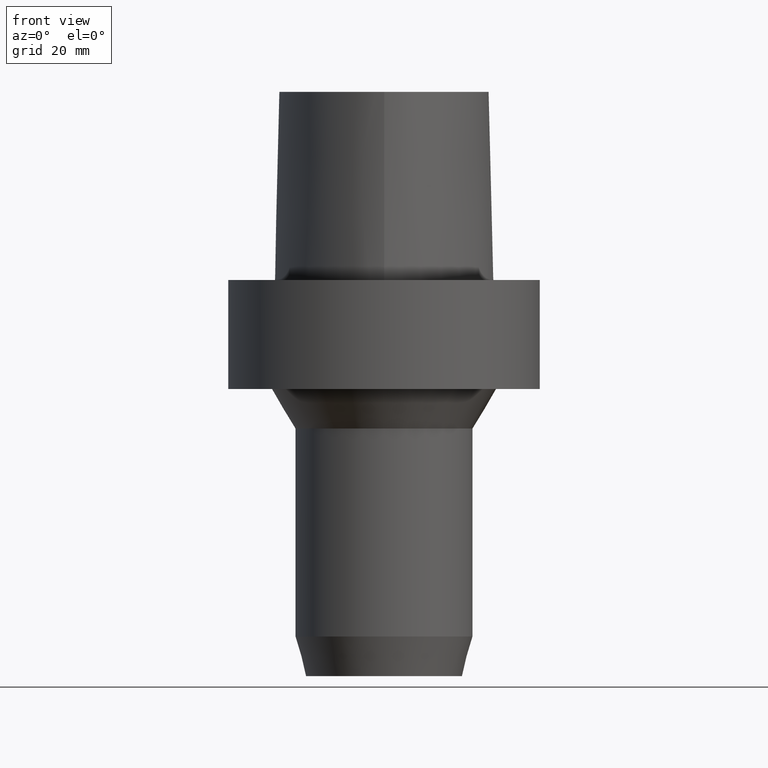
[diagram: clean part render]
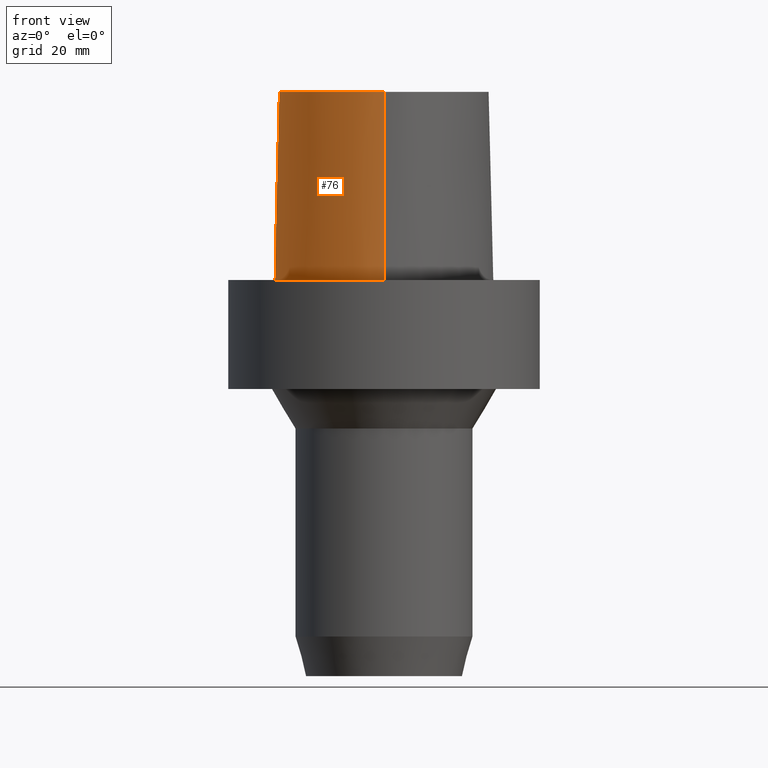
[diagram: same view with one face highlighted and labeled with its STEP entity id]
A machine part, front view. The second image highlights one B-rep face of the part: STEP entity #76.
In plain terms, the highlighted face is a freeform B-spline surface patch.
Its self-contained STEP definition (entity closure, byte-faithful):
#76=ADVANCED_FACE('',(#89),#90,.T.);
#89=FACE_OUTER_BOUND('',#184,.T.);
#90=B_SPLINE_SURFACE_WITH_KNOTS('',3,3,((#185,#186,#187,#188),(#189,#190,#191,#192),(#193,#194,#195,#196),(#197,#198,#199,#200),(#201,#202,#203,#204),(#205,#206,#207,#208),(#209,#210,#211,#212),(#213,#214,#215,#216),(#217,#218,#219,#220),(#221,#222,#223,#224),(#225,#226,#227,#228),(#229,#230,#231,#232),(#233,#234,#235,#236),(#237,#238,#239,#240),(#241,#242,#243,#244),(#245,#246,#247,#248),(#249,#250,#251,#252),(#253,#254,#255,#256)),.UNSPECIFIED.,.F.,.F.,.F.,(4,1,1,1,1,1,1,1,1,2,1,1,1,1,4),(4,4),(-6.6151339308743,-6.20168806019465,-5.78824218951501,-5.37479631883537,-4.96135044815572,-4.13445870679644,-3.30756696543715,-2.89412109475751,-2.48067522407786,-2.06722935339822,-1.65378348271857,-1.24033761203893,-0.826891741359287,-0.413445870679644,0.0),(-3.8,0.0),.UNSPECIFIED.);
#184=EDGE_LOOP('',(#285,#286,#287,#288));
#185=CARTESIAN_POINT('',(0.038736923393866,-22.5191997536361,38.0));
#186=CARTESIAN_POINT('',(0.04035580478973,-22.8358410047159,25.3333333333066));
#187=CARTESIAN_POINT('',(0.041974686185626,-23.1524822558133,12.6666666666934));
#188=CARTESIAN_POINT('',(0.04359356758149,-23.4691235068931,7.78075697532443E-032));
#189=CARTESIAN_POINT('',(-1.33786123484754,-22.5261650259856,38.0));
#190=CARTESIAN_POINT('',(-1.38240731367927,-22.8430399310626,25.3333333333066));
#191=CARTESIAN_POINT('',(-1.42695339249092,-23.1599147815484,12.6666666666934));
#192=CARTESIAN_POINT('',(-1.4714994713963,-23.4767895315797,2.46519032881566E-032));
#193=CARTESIAN_POINT('',(-4.08909358431842,-21.9268839879558,38.0));
#194=CARTESIAN_POINT('',(-4.20580731135515,-22.2249725500078,25.3333333333066));
#195=CARTESIAN_POINT('',(-4.32252104640446,-22.5230611651922,12.6666666666934));
#196=CARTESIAN_POINT('',(-4.43923476371401,-22.821149804767,-4.93038065763132E-032));
#197=CARTESIAN_POINT('',(-7.8333083619947,-19.9973514861616,38.0));
#198=CARTESIAN_POINT('',(-8.00568301809614,-20.2649260859405,25.3333333333066));
#199=CARTESIAN_POINT('',(-8.1780576640789,-20.532500564315,12.6666666666934));
#200=CARTESIAN_POINT('',(-8.35043230079961,-20.8000751253325,-9.86076131526265E-032));
#201=CARTESIAN_POINT('',(-11.1035071147626,-17.450554957873,38.0));
#202=CARTESIAN_POINT('',(-11.3173048160562,-17.6855739222454,25.3333333333066));
#203=CARTESIAN_POINT('',(-11.5311025116181,-17.9205928617968,12.6666666666934));
#204=CARTESIAN_POINT('',(-11.744900222602,-18.1556117874078,-1.97215226305253E-031));
#205=CARTESIAN_POINT('',(-14.9379535189057,-13.461132049697,38.0));
#206=CARTESIAN_POINT('',(-15.191622410671,-13.6542981711372,25.3333333333066));
#207=CARTESIAN_POINT('',(-15.4452913389853,-13.8474645327131,12.6666666666934));
#208=CARTESIAN_POINT('',(-15.6989602501314,-14.0406306929147,-1.97215226305253E-031));
#209=CARTESIAN_POINT('',(-18.6681263017223,-7.59391757463204,38.0));
#210=CARTESIAN_POINT('',(-18.9571800800711,-7.73136168081928,25.3333333333066));
#211=CARTESIAN_POINT('',(-19.2462337287194,-7.86880572399774,12.6666666666934));
#212=CARTESIAN_POINT('',(-19.5352875070682,-8.00624990770787,1.97215226305253E-031));
#213=CARTESIAN_POINT('',(-20.7857899858339,-0.952862819790525,38.0));
#214=CARTESIAN_POINT('',(-21.0973808305434,-1.02218087467418,25.3333333333066));
#215=CARTESIAN_POINT('',(-21.408971677436,-1.09149899580772,12.6666666666934));
#216=CARTESIAN_POINT('',(-21.7205626190491,-1.16081708945282,0.0));
#217=CARTESIAN_POINT('',(-21.2911760556836,4.5469215763113,38.0));
#218=CARTESIAN_POINT('',(-21.610337904926,4.54783292082248,25.3333333333066));
#219=CARTESIAN_POINT('',(-21.9294998290918,4.54874426225691,12.6666666666934));
#220=CARTESIAN_POINT('',(-22.2486616783342,4.54965558738736,0.0));
#221=CARTESIAN_POINT('',(-20.7345309521958,8.74909381391006,38.0));
#222=CARTESIAN_POINT('',(-21.0445680426217,8.83349432450556,25.3333333333066));
#223=CARTESIAN_POINT('',(-21.3546050933631,8.91789488065068,12.6666666666934));
#224=CARTESIAN_POINT('',(-21.6646421256468,9.00229539124618,0.0));
#225=CARTESIAN_POINT('',(-19.5531512296439,11.3174844040833,38.0));
#226=CARTESIAN_POINT('',(-19.8336219699984,11.4710077674213,25.3333333333066));
#227=CARTESIAN_POINT('',(-20.1140927680763,11.6245311337623,12.6666666666934));
#228=CARTESIAN_POINT('',(-20.3945635471922,11.7780544971003,0.0));
#229=CARTESIAN_POINT('',(-17.9100913688793,13.524027510437,38.0));
#230=CARTESIAN_POINT('',(-18.1375785458768,13.7487051053655,25.3333333333066));
#231=CARTESIAN_POINT('',(-18.365065665211,13.9733826973296,12.6666666666934));
#232=CARTESIAN_POINT('',(-18.5925528034471,14.1980602922581,0.0));
#233=CARTESIAN_POINT('',(-15.7996349656398,15.3762170634413,38.0));
#234=CARTESIAN_POINT('',(-15.9739761051783,15.6434029846179,25.3333333333066));
#235=CARTESIAN_POINT('',(-16.1483172726872,15.9105889315134,12.6666666666934));
#236=CARTESIAN_POINT('',(-16.3226584122258,16.1777748720707,0.0));
#237=CARTESIAN_POINT('',(-12.1175640002064,17.3825162484012,38.0));
#238=CARTESIAN_POINT('',(-12.2475895903055,17.6724842099619,25.3333333333066));
#239=CARTESIAN_POINT('',(-12.3776152070492,17.9624521925696,12.6666666666934));
#240=CARTESIAN_POINT('',(-12.5076407874579,18.2524201541303,9.86076131526265E-032));
#241=CARTESIAN_POINT('',(-8.21761151654222,18.7588585989994,38.0));
#242=CARTESIAN_POINT('',(-8.30099497910627,19.0656105427881,25.3333333333066));
#243=CARTESIAN_POINT('',(-8.38437843913309,19.3723624535439,12.6666666666934));
#244=CARTESIAN_POINT('',(-8.46776192107786,19.679114377952,9.86076131526265E-032));
#245=CARTESIAN_POINT('',(-4.13466093881225,19.5396850837055,38.0));
#246=CARTESIAN_POINT('',(-4.16658562115465,19.8557172636973,25.3333333333066));
#247=CARTESIAN_POINT('',(-4.19851029939059,20.1717494367229,12.6666666666934));
#248=CARTESIAN_POINT('',(-4.23043497193604,20.487781597334,1.97215226305253E-031));
#249=CARTESIAN_POINT('',(-1.37917220403684,19.6638560588908,38.0));
#250=CARTESIAN_POINT('',(-1.39382511685176,19.98016223565,25.3333333333066));
#251=CARTESIAN_POINT('',(-1.40847802945569,20.296468399885,12.6666666666934));
#252=CARTESIAN_POINT('',(-1.42313094248379,20.6127745766442,1.10933564796705E-031));
#253=CARTESIAN_POINT('',(-0.001218547003662,19.7276821925089,38.0));
#254=CARTESIAN_POINT('',(-0.015869696232855,20.043988446791,25.3333333333066));
#255=CARTESIAN_POINT('',(-0.030520845462092,20.3602947010464,12.6666666666934));
#256=CARTESIAN_POINT('',(-0.045171994691285,20.6766009553285,1.6755590516169E-031));
#285=ORIENTED_EDGE('',*,*,#340,.F.);
#286=ORIENTED_EDGE('',*,*,#339,.F.);
#287=ORIENTED_EDGE('',*,*,#341,.F.);
#288=ORIENTED_EDGE('',*,*,#342,.T.);
#339=EDGE_CURVE('',#355,#351,#357,.T.);
#340=EDGE_CURVE('',#351,#358,#359,.T.);
#341=EDGE_CURVE('',#353,#355,#360,.T.);
#342=EDGE_CURVE('',#353,#358,#361,.T.);
#351=VERTEX_POINT('',#376);
#353=VERTEX_POINT('',#394);
#355=VERTEX_POINT('',#397);
#357=LINE('',#414,#415);
#358=VERTEX_POINT('',#416);
#359=B_SPLINE_CURVE_WITH_KNOTS('',3,(#417,#418,#419,#420,#421,#422,#423,#424,#425,#426,#427,#428,#429,#430,#431,#432,#433,#434),.UNSPECIFIED.,.F.,.F.,(4,1,1,1,1,1,1,1,1,2,1,1,1,1,4),(-6.6151339308743,-6.20168806019465,-5.78824218951501,-5.37479631883537,-4.96135044815572,-4.13445870679644,-3.30756696543715,-2.89412109475751,-2.48067522407786,-2.06722935339822,-1.65378348271857,-1.24033761203893,-0.826891741359287,-0.413445870679644,0.0),.UNSPECIFIED.);
#360=B_SPLINE_CURVE_WITH_KNOTS('',3,(#435,#436,#437,#438,#439,#440,#441,#442,#443,#444,#445,#446,#447,#448,#449,#450),.UNSPECIFIED.,.F.,.F.,(4,1,1,1,1,1,1,1,1,1,1,1,1,4),(0.0,0.447924670568964,0.9388024242536,1.50591409090711,2.07314340012323,2.72424957442464,3.2253501842849,3.80982102049476,4.34867996267067,4.85900173381144,5.37972031856977,6.03459825488646,6.61113557741484,6.61513393087395),.UNSPECIFIED.);
#361=LINE('',#451,#452);
#376=CARTESIAN_POINT('',(0.04359356758149,-23.4691235068931,7.78075697532443E-032));
#394=CARTESIAN_POINT('',(-0.001218547003662,19.7276821925089,38.0));
#397=CARTESIAN_POINT('',(0.038736923393866,-22.5191997536361,38.0));
#414=CARTESIAN_POINT('',(0.038736923393866,-22.5191997536361,38.0));
#415=VECTOR('',#467,38.0118715498723);
#416=CARTESIAN_POINT('',(-0.045171994691285,20.6766009553285,1.6755590516169E-031));
#417=CARTESIAN_POINT('',(0.04359356758149,-23.4691235068931,7.78075697532443E-032));
#418=CARTESIAN_POINT('',(-1.4714994713963,-23.4767895315797,2.46519032881566E-032));
#419=CARTESIAN_POINT('',(-4.43923476371401,-22.821149804767,-4.93038065763132E-032));
#420=CARTESIAN_POINT('',(-8.35043230079961,-20.8000751253325,-9.86076131526265E-032));
#421=CARTESIAN_POINT('',(-11.744900222602,-18.1556117874078,-1.97215226305253E-031));
#422=CARTESIAN_POINT('',(-15.6989602501314,-14.0406306929147,-1.97215226305253E-031));
#423=CARTESIAN_POINT('',(-19.5352875070682,-8.00624990770787,1.97215226305253E-031));
#424=CARTESIAN_POINT('',(-21.7205626190491,-1.16081708945282,0.0));
#425=CARTESIAN_POINT('',(-22.2486616783342,4.54965558738736,0.0));
#426=CARTESIAN_POINT('',(-21.6646421256468,9.00229539124618,0.0));
#427=CARTESIAN_POINT('',(-20.3945635471922,11.7780544971003,0.0));
#428=CARTESIAN_POINT('',(-18.5925528034471,14.1980602922581,0.0));
#429=CARTESIAN_POINT('',(-16.3226584122258,16.1777748720707,0.0));
#430=CARTESIAN_POINT('',(-12.5076407874579,18.2524201541303,9.86076131526265E-032));
#431=CARTESIAN_POINT('',(-8.46776192107786,19.679114377952,9.86076131526265E-032));
#432=CARTESIAN_POINT('',(-4.23043497193604,20.487781597334,1.97215226305253E-031));
#433=CARTESIAN_POINT('',(-1.42313094248379,20.6127745766442,1.10933564796705E-031));
#434=CARTESIAN_POINT('',(-0.045171994691285,20.6766009553285,1.6755590516169E-031));
#435=CARTESIAN_POINT('',(-0.001218547003662,19.7276821925089,38.0));
#436=CARTESIAN_POINT('',(-1.49408492138443,19.6585333605309,38.0));
#437=CARTESIAN_POINT('',(-4.62297391420352,19.513604770166,38.0));
#438=CARTESIAN_POINT('',(-9.56160616752212,18.4291575730197,38.0));
#439=CARTESIAN_POINT('',(-14.5427684976927,16.2697452580488,38.0));
#440=CARTESIAN_POINT('',(-19.4315563551602,12.5302108980807,38.0));
#441=CARTESIAN_POINT('',(-21.306358833612,6.76352894547076,38.0));
#442=CARTESIAN_POINT('',(-21.0724946936277,0.957075236984038,38.0));
#443=CARTESIAN_POINT('',(-19.7876470880144,-4.34628503581652,38.0));
#444=CARTESIAN_POINT('',(-17.5396999600095,-9.33314444653089,38.0));
#445=CARTESIAN_POINT('',(-14.645447733857,-13.7185760345629,38.0));
#446=CARTESIAN_POINT('',(-10.7996726536643,-17.856257282137,38.0));
#447=CARTESIAN_POINT('',(-6.00479510196376,-21.2687382067675,38.0));
#448=CARTESIAN_POINT('',(-1.90747171908525,-22.5250621415864,38.0));
#449=CARTESIAN_POINT('',(0.025424107066464,-22.5192678176378,38.0));
#450=CARTESIAN_POINT('',(0.038736923394311,-22.519199753636,38.0));
#451=CARTESIAN_POINT('',(-0.001218547003662,19.7276821925089,38.0));
#452=VECTOR('',#468,38.0118715498723);
#467=DIRECTION('',(0.000127766510556,-0.024990186342461,-0.999687688361864));
#468=DIRECTION('',(-0.001156308434589,0.02496374748543,-0.999687688361864));